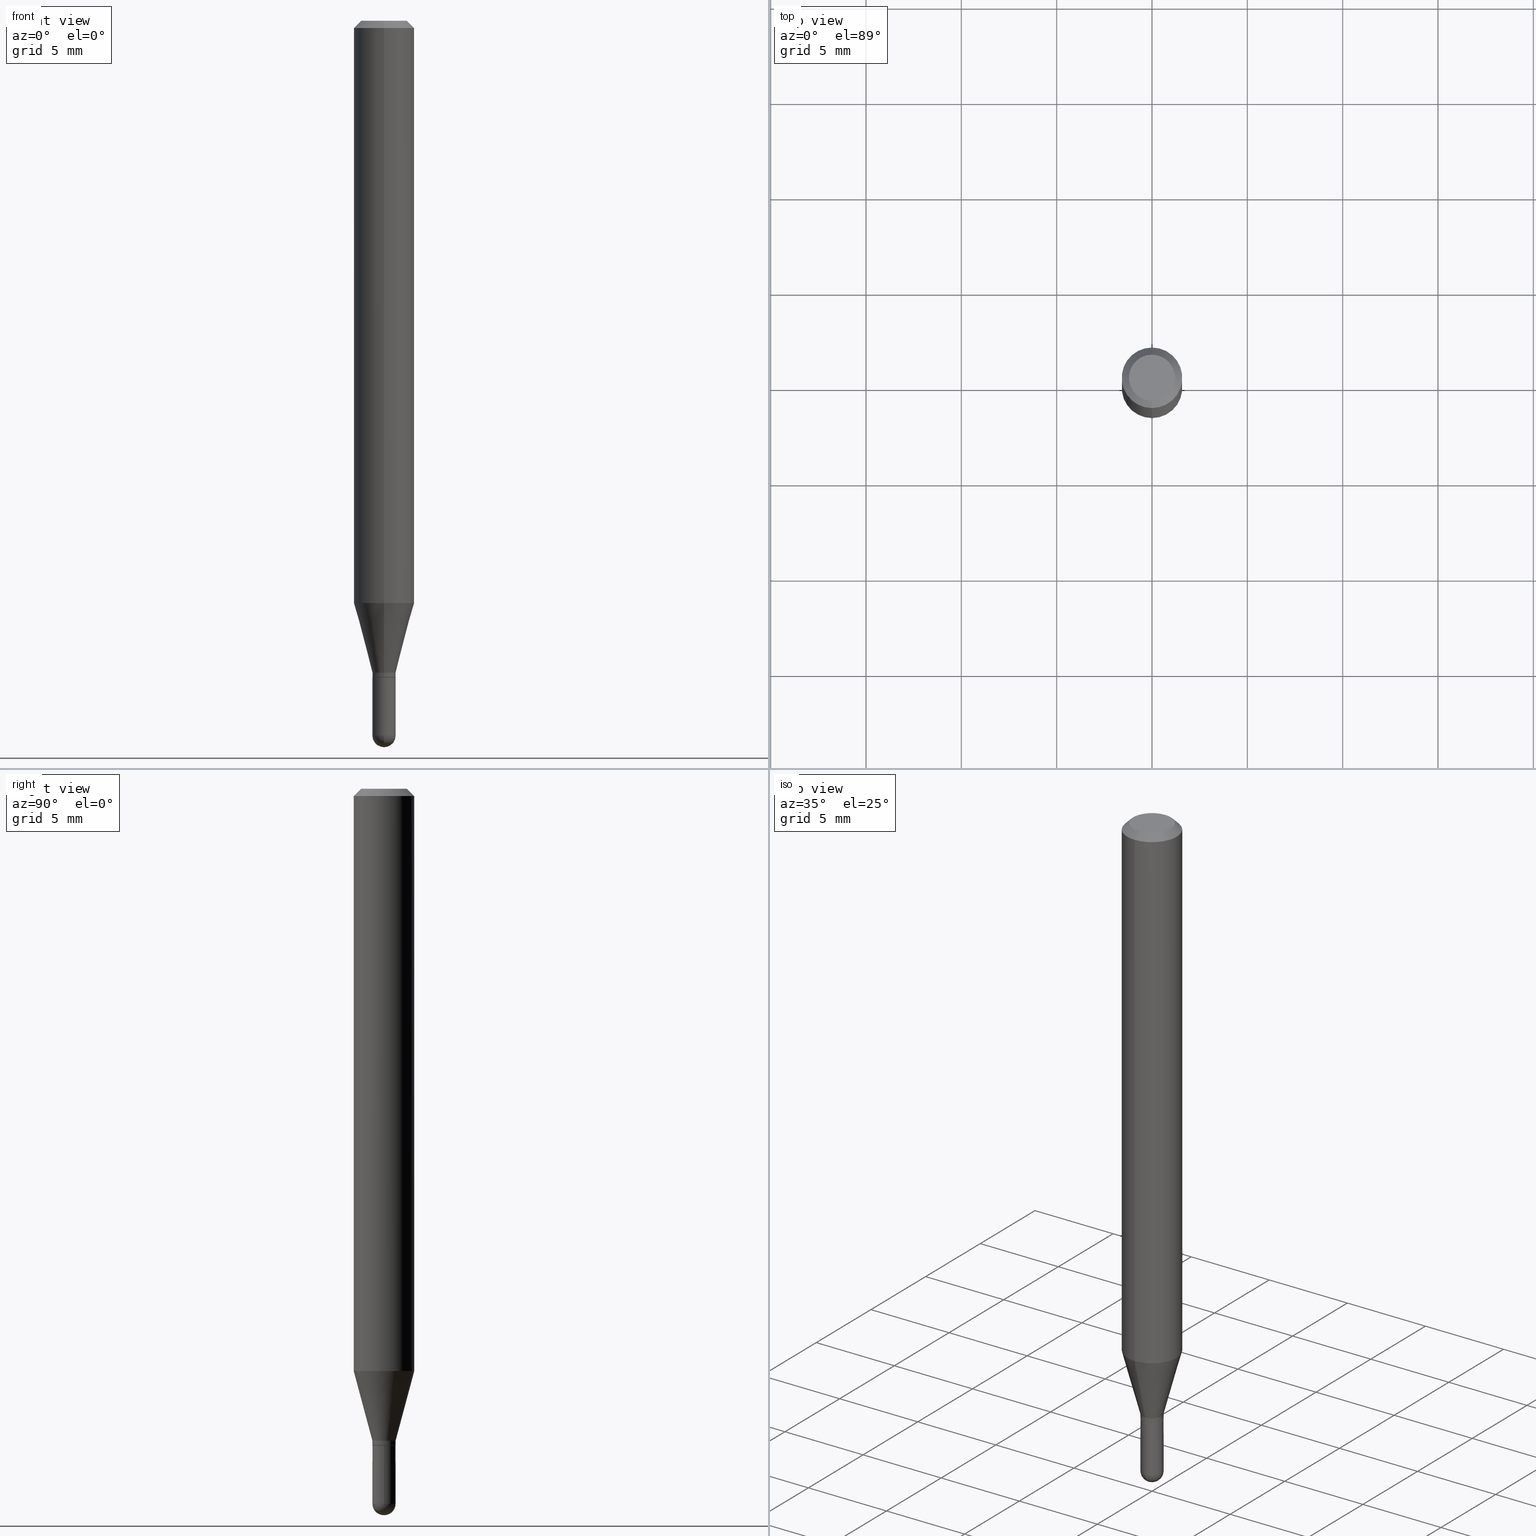
[diagram: canonical four-view strip — front | top / right | iso, engineering-drawing reading convention]
A machine part, canonical four-view strip (front | top / right | iso — engineering-drawing reading convention). The complete STEP part file that produces these views, byte-faithful:
ISO-10303-21;
HEADER;
FILE_DESCRIPTION (( 'STEP AP203' ),
    '1' );
FILE_NAME ('02613.STEP',
    '2024-03-07T20:46:47',
    ( '' ),
    ( '' ),
    'SwSTEP 2.0',
    'SolidWorks 2023',
    '' );
FILE_SCHEMA (( 'CONFIG_CONTROL_DESIGN' ));
ENDSEC;

DATA;
#1 = EDGE_LOOP ( 'NONE', ( #47, #358, #262, #488 ) ) ;
#2 = DIRECTION ( 'NONE',  ( -6.982962677686265922E-15, -1.000000000000000000, 4.370956789862821150E-15 ) ) ;
#3 = EDGE_CURVE ( 'NONE', #439, #468, #250, .T. ) ;
#4 = ORIENTED_EDGE ( 'NONE', *, *, #259, .T. ) ;
#5 = DIRECTION ( 'NONE',  ( 1.000000000000000000, 0.000000000000000000, 0.000000000000000000 ) ) ;
#6 = CC_DESIGN_PERSON_AND_ORGANIZATION_ASSIGNMENT ( #214, #495, ( #455 ) ) ;
#7 = CIRCLE ( 'NONE', #328, 0.04749999999999999362 ) ;
#8 = EDGE_LOOP ( 'NONE', ( #115, #220, #366, #32, #365 ) ) ;
#9 = LINE ( 'NONE', #160, #282 ) ;
#10 = AXIS2_PLACEMENT_3D ( 'NONE', #147, #219, #263 ) ;
#11 = EDGE_CURVE ( 'NONE', #435, #12, #496, .T. ) ;
#12 = VERTEX_POINT ( 'NONE', #247 ) ;
#13 = CC_DESIGN_PERSON_AND_ORGANIZATION_ASSIGNMENT ( #403, #196, ( #401 ) ) ;
#14 = ORIENTED_EDGE ( 'NONE', *, *, #52, .F. ) ;
#15 = DIRECTION ( 'NONE',  ( 0.000000000000000000, 0.000000000000000000, 1.000000000000000000 ) ) ;
#16 = ADVANCED_FACE ( 'NONE', ( #56 ), #97, .T. ) ;
#17 = FACE_OUTER_BOUND ( 'NONE', #316, .T. ) ;
#18 = FACE_OUTER_BOUND ( 'NONE', #272, .T. ) ;
#19 = DIRECTION ( 'NONE',  ( 1.000000000000000000, -6.982962677686266711E-15, 4.876176775795935232E-29 ) ) ;
#20 = VECTOR ( 'NONE', #356, 39.37007874015748143 ) ;
#21 = CARTESIAN_POINT ( 'NONE',  ( 3.316055701187045333E-29, -4.734448695471306216E-15, -1.356000000000000316 ) ) ;
#22 = APPROVAL_DATE_TIME ( #64, #473 ) ;
#23 = DIRECTION ( 'NONE',  ( 2.438088387897960049E-29, -3.491481338843145188E-15, -1.000000000000000000 ) ) ;
#24 = LINE ( 'NONE', #29, #421 ) ;
#25 = EDGE_CURVE ( 'NONE', #154, #159, #117, .T. ) ;
#26 = AXIS2_PLACEMENT_3D ( 'NONE', #255, #297, #423 ) ;
#27 = VECTOR ( 'NONE', #382, 39.37007874015748143 ) ;
#28 = LOCAL_TIME ( 15, 46, 47.00000000000000000, #369 ) ;
#29 = CARTESIAN_POINT ( 'NONE',  ( -1.640996229255941198E-16, -0.02350000000000473585, -1.356000000000000316 ) ) ;
#30 = CARTESIAN_POINT ( 'NONE',  ( -0.02400000000000000397, 1.705302565824240728E-16, -1.180544421661177751E-30 ) ) ;
#31 = CONICAL_SURFACE ( 'NONE', #26, 0.02350000000000000352, 0.7853981633974739252 ) ;
#32 = ORIENTED_EDGE ( 'NONE', *, *, #410, .F. ) ;
#33 = DIRECTION ( 'NONE',  ( -4.851104656540964275E-15, -0.7071067811865500152, -0.7071067811865450192 ) ) ;
#34 = UNCERTAINTY_MEASURE_WITH_UNIT (LENGTH_MEASURE( 1.000000000000000082E-05 ), #440, 'distance_accuracy_value', 'NONE');
#35 = CC_DESIGN_DATE_AND_TIME_ASSIGNMENT ( #492, #336, ( #93 ) ) ;
#36 = ADVANCED_BREP_SHAPE_REPRESENTATION ( '02613', ( #349, #346, #321 ), #387 ) ;
#37 = DIRECTION ( 'NONE',  ( -2.445468806185136877E-29, 3.491481338843145188E-15, 1.000000000000000000 ) ) ;
#38 = CIRCLE ( 'NONE', #319, 0.02399999999999992764 ) ;
#39 = VECTOR ( 'NONE', #121, 39.37007874015748143 ) ;
#40 = DIRECTION ( 'NONE',  ( -2.445461197207060331E-29, 3.491492235332826977E-15, 1.000000000000000000 ) ) ;
#41 = ORIENTED_EDGE ( 'NONE', *, *, #52, .T. ) ;
#42 = MECHANICAL_CONTEXT ( 'NONE', #308, 'mechanical' ) ;
#43 = ORIENTED_EDGE ( 'NONE', *, *, #3, .F. ) ;
#44 = DIRECTION ( 'NONE',  ( -2.445461197207060331E-29, 3.491492235332826977E-15, 1.000000000000000000 ) ) ;
#45 = AXIS2_PLACEMENT_3D ( 'NONE', #451, #340, #132 ) ;
#46 = ADVANCED_FACE ( 'NONE', ( #90 ), #31, .T. ) ;
#47 = ORIENTED_EDGE ( 'NONE', *, *, #274, .F. ) ;
#48 = APPLICATION_PROTOCOL_DEFINITION ( 'international standard', 'config_control_design', 1994, #308 ) ;
#49 = CIRCLE ( 'NONE', #497, 0.02400000000000000397 ) ;
#50 = ORIENTED_EDGE ( 'NONE', *, *, #151, .T. ) ;
#51 = CARTESIAN_POINT ( 'NONE',  ( 3.316907271900976096E-16, 0.04749999999999999362, -3.299190962427591539E-16 ) ) ;
#52 = EDGE_CURVE ( 'NONE', #468, #439, #38, .T. ) ;
#53 = ORIENTED_EDGE ( 'NONE', *, *, #461, .T. ) ;
#54 = DIRECTION ( 'NONE',  ( -2.445461197207060331E-29, 3.491492235332826977E-15, 1.000000000000000000 ) ) ;
#55 = DIRECTION ( 'NONE',  ( -2.445461197207060331E-29, 3.491492235332826977E-15, 1.000000000000000000 ) ) ;
#56 = FACE_OUTER_BOUND ( 'NONE', #309, .T. ) ;
#57 = ADVANCED_FACE ( 'NONE', ( #18 ), #258, .T. ) ;
#58 = DIRECTION ( 'NONE',  ( -2.445461197207060331E-29, 3.491492235332826977E-15, 1.000000000000000000 ) ) ;
#59 = APPROVAL_DATE_TIME ( #463, #290 ) ;
#60 = EDGE_CURVE ( 'NONE', #154, #280, #24, .T. ) ;
#61 = DIRECTION ( 'NONE',  ( -2.445461197207060331E-29, 3.491492235332826977E-15, 1.000000000000000000 ) ) ;
#62 = DIRECTION ( 'NONE',  ( 2.445461197207060331E-29, -3.491492235332826977E-15, -1.000000000000000000 ) ) ;
#63 = CARTESIAN_POINT ( 'NONE',  ( 3.316045383412774155E-29, -4.734463471111314297E-15, -1.356000000000000316 ) ) ;
#64 = DATE_AND_TIME ( #289, #464 ) ;
#65 = AXIS2_PLACEMENT_3D ( 'NONE', #288, #498, #251 ) ;
#66 = AXIS2_PLACEMENT_3D ( 'NONE', #125, #54, #192 ) ;
#67 = DIRECTION ( 'NONE',  ( -6.982962677686265133E-15, -1.000000000000000000, 0.000000000000000000 ) ) ;
#68 = ORIENTED_EDGE ( 'NONE', *, *, #295, .F. ) ;
#69 = LINE ( 'NONE', #428, #20 ) ;
#70 = SHAPE_DEFINITION_REPRESENTATION ( #441, #36 ) ;
#71 = VERTEX_POINT ( 'NONE', #174 ) ;
#72 = CARTESIAN_POINT ( 'NONE',  ( -4.364351673553623829E-16, -0.06250000000000421885, -1.202316043908598475 ) ) ;
#73 = CONICAL_SURFACE ( 'NONE', #422, 0.06250000000000000000, 0.7853981633974483900 ) ;
#74 = EDGE_CURVE ( 'NONE', #429, #435, #437, .T. ) ;
#75 = APPROVAL_PERSON_ORGANIZATION ( #101, #473, #131 ) ;
#76 = EDGE_LOOP ( 'NONE', ( #144, #191 ) ) ;
#77 = CARTESIAN_POINT ( 'NONE',  ( -0.02400000000000000050, -4.773407319219470337E-15, -1.356000000000000316 ) ) ;
#78 = CALENDAR_DATE ( 2024, 7, 3 ) ;
#79 = CARTESIAN_POINT ( 'NONE',  ( -4.287811248607203282E-16, -0.06250000000000005551, -0.01500000000000011047 ) ) ;
#80 = CARTESIAN_POINT ( 'NONE',  ( 0.000000000000000000, 0.000000000000000000, 0.000000000000000000 ) ) ;
#81 = EDGE_LOOP ( 'NONE', ( #355, #41, #480, #466 ) ) ;
#82 = DIRECTION ( 'NONE',  ( -6.982962677686265133E-15, -1.000000000000000000, 0.000000000000000000 ) ) ;
#83 = ORIENTED_EDGE ( 'NONE', *, *, #194, .T. ) ;
#84 = ORIENTED_EDGE ( 'NONE', *, *, #410, .T. ) ;
#85 = ORIENTED_EDGE ( 'NONE', *, *, #194, .F. ) ;
#86 = CARTESIAN_POINT ( 'NONE',  ( 0.000000000000000000, 0.000000000000000000, 0.000000000000000000 ) ) ;
#87 = CC_DESIGN_APPROVAL ( #510, ( #231 ) ) ;
#88 = ORIENTED_EDGE ( 'NONE', *, *, #165, .T. ) ;
#89 = APPLICATION_PROTOCOL_DEFINITION ( 'international standard', 'config_control_design', 1994, #232 ) ;
#90 = FACE_OUTER_BOUND ( 'NONE', #444, .T. ) ;
#91 = PERSON_AND_ORGANIZATION ( #312, #253 ) ;
#92 = DIRECTION ( 'NONE',  ( -6.982962677686265133E-15, -1.000000000000000000, 3.491492235332826977E-15 ) ) ;
#93 = PRODUCT_DEFINITION ( 'UNKNOWN', '', #455, #350 ) ;
#94 = APPROVAL_PERSON_ORGANIZATION ( #412, #290, #281 ) ;
#95 = DIRECTION ( 'NONE',  ( -2.445468806185136597E-29, 3.491481338843145583E-15, 1.000000000000000000 ) ) ;
#96 = EDGE_CURVE ( 'NONE', #270, #435, #384, .T. ) ;
#97 = SPHERICAL_SURFACE ( 'NONE', #320, 0.02400000000000017397 ) ;
#98 = COORDINATED_UNIVERSAL_TIME_OFFSET ( 5, 0, .BEHIND. ) ;
#99 = DIRECTION ( 'NONE',  ( 1.000000000000000000, -6.982962677686250144E-15, 0.000000000000000000 ) ) ;
#100 = DIRECTION ( 'NONE',  ( 1.000000000000000000, -6.982962677686265922E-15, 4.883557194083111780E-29 ) ) ;
#101 = PERSON_AND_ORGANIZATION ( #312, #253 ) ;
#102 = VECTOR ( 'NONE', #33, 39.37007874015748143 ) ;
#103 = ORIENTED_EDGE ( 'NONE', *, *, #200, .T. ) ;
#104 = VERTEX_POINT ( 'NONE', #330 ) ;
#105 = DIRECTION ( 'NONE',  ( 6.982962677686265922E-15, 1.000000000000000000, -3.483106191921935554E-15 ) ) ;
#106 = ORIENTED_EDGE ( 'NONE', *, *, #60, .T. ) ;
#107 = CARTESIAN_POINT ( 'NONE',  ( 0.02400000000000000397, -1.675911042644704316E-16, 1.170282426191024667E-30 ) ) ;
#108 = APPROVAL_DATE_TIME ( #261, #510 ) ;
#109 = AXIS2_PLACEMENT_3D ( 'NONE', #63, #414, #371 ) ;
#110 = CIRCLE ( 'NONE', #66, 0.06250000000000000000 ) ;
#111 = EDGE_CURVE ( 'NONE', #159, #154, #292, .T. ) ;
#112 = DIRECTION ( 'NONE',  ( -2.445468806185136877E-29, 3.491481338843145188E-15, 1.000000000000000000 ) ) ;
#113 = ORIENTED_EDGE ( 'NONE', *, *, #223, .T. ) ;
#114 = CYLINDRICAL_SURFACE ( 'NONE', #446, 0.06250000000000000000 ) ;
#115 = ORIENTED_EDGE ( 'NONE', *, *, #11, .T. ) ;
#116 = CARTESIAN_POINT ( 'NONE',  ( 1.705302565824560463E-16, 0.02399999999999511205, -1.355500000000000371 ) ) ;
#117 = CIRCLE ( 'NONE', #109, 0.02350000000000000352 ) ;
#118 = ORIENTED_EDGE ( 'NONE', *, *, #274, .T. ) ;
#119 = CYLINDRICAL_SURFACE ( 'NONE', #343, 0.02400000000000000397 ) ;
#120 = ORIENTED_EDGE ( 'NONE', *, *, #383, .T. ) ;
#121 = DIRECTION ( 'NONE',  ( -2.445461197207060331E-29, 3.491492235332826977E-15, 1.000000000000000000 ) ) ;
#122 = ORIENTED_EDGE ( 'NONE', *, *, #123, .T. ) ;
#123 = EDGE_CURVE ( 'NONE', #380, #485, #166, .T. ) ;
#124 = ORIENTED_EDGE ( 'NONE', *, *, #11, .F. ) ;
#125 = CARTESIAN_POINT ( 'NONE',  ( 2.940217232157978499E-29, -4.197877131722955059E-15, -1.202316043908598697 ) ) ;
#126 = VECTOR ( 'NONE', #254, 39.37007874015748143 ) ;
#127 = CARTESIAN_POINT ( 'NONE',  ( 3.607459558835231439E-29, -5.156365608450436393E-15, -1.475999999999999979 ) ) ;
#128 = CARTESIAN_POINT ( 'NONE',  ( 1.705302565824607055E-16, 0.02399999999999493164, -1.475999999999999979 ) ) ;
#129 = CARTESIAN_POINT ( 'NONE',  ( 3.607459558835231439E-29, -5.156365608450436393E-15, -1.475999999999999979 ) ) ;
#130 = PLANE ( 'NONE',  #156 ) ;
#131 = APPROVAL_ROLE ( '' ) ;
#132 = DIRECTION ( 'NONE',  ( -6.982962677686265922E-15, -1.000000000000000000, 0.000000000000000000 ) ) ;
#133 = CIRCLE ( 'NONE', #511, 0.02400000000000017397 ) ;
#134 = PERSON_AND_ORGANIZATION ( #312, #253 ) ;
#135 = DIRECTION ( 'NONE',  ( -2.445461197207060331E-29, 3.491492235332826977E-15, 1.000000000000000000 ) ) ;
#136 = PERSON_AND_ORGANIZATION ( #312, #253 ) ;
#137 = CARTESIAN_POINT ( 'NONE',  ( 3.291590771440703350E-29, -4.699548548757984927E-15, -1.346000000000000085 ) ) ;
#138 = ORIENTED_EDGE ( 'NONE', *, *, #229, .T. ) ;
#139 = AXIS2_PLACEMENT_3D ( 'NONE', #21, #500, #339 ) ;
#140 = AXIS2_PLACEMENT_3D ( 'NONE', #145, #381, #476 ) ;
#141 = ADVANCED_FACE ( 'NONE', ( #456 ), #130, .F. ) ;
#142 = ORIENTED_EDGE ( 'NONE', *, *, #123, .F. ) ;
#143 = LINE ( 'NONE', #79, #102 ) ;
#144 = ORIENTED_EDGE ( 'NONE', *, *, #25, .F. ) ;
#145 = CARTESIAN_POINT ( 'NONE',  ( 3.316045383412774155E-29, -4.734463471111314297E-15, -1.356000000000000316 ) ) ;
#146 = ADVANCED_FACE ( 'NONE', ( #491 ), #378, .F. ) ;
#147 = CARTESIAN_POINT ( 'NONE',  ( 3.291590771440703350E-29, -4.699548548757984927E-15, -1.346000000000000085 ) ) ;
#148 = APPROVAL_ROLE ( '' ) ;
#149 = VECTOR ( 'NONE', #112, 39.37007874015748143 ) ;
#150 = DIRECTION ( 'NONE',  ( 1.000000000000000000, -6.982962677686265922E-15, 4.883557194083111780E-29 ) ) ;
#151 = EDGE_CURVE ( 'NONE', #71, #405, #354, .T. ) ;
#152 = ORIENTED_EDGE ( 'NONE', *, *, #259, .F. ) ;
#153 = SPHERICAL_SURFACE ( 'NONE', #398, 0.02400000000000017397 ) ;
#154 = VERTEX_POINT ( 'NONE', #375 ) ;
#155 = DIRECTION ( 'NONE',  ( -2.445468806185136597E-29, 3.491481338843145583E-15, 1.000000000000000000 ) ) ;
#156 = AXIS2_PLACEMENT_3D ( 'NONE', #213, #23, #170 ) ;
#157 = AXIS2_PLACEMENT_3D ( 'NONE', #483, #44, #359 ) ;
#158 = LOCAL_TIME ( 15, 46, 47.00000000000000000, #420 ) ;
#159 = VERTEX_POINT ( 'NONE', #171 ) ;
#160 = CARTESIAN_POINT ( 'NONE',  ( -1.675911042644369543E-16, -0.02400000000000462527, -1.346000000000000085 ) ) ;
#161 = LINE ( 'NONE', #173, #126 ) ;
#162 = ORIENTED_EDGE ( 'NONE', *, *, #246, .T. ) ;
#163 = DIRECTION ( 'NONE',  ( -6.982962677686265922E-15, -1.000000000000000000, 3.491492235332826977E-15 ) ) ;
#164 = VERTEX_POINT ( 'NONE', #294 ) ;
#165 = EDGE_CURVE ( 'NONE', #408, #71, #335, .T. ) ;
#166 = CIRCLE ( 'NONE', #139, 0.02400000000000000050 ) ;
#167 = CARTESIAN_POINT ( 'NONE',  ( 3.607459558835231439E-29, -5.156365608450436393E-15, -1.475999999999999979 ) ) ;
#168 = CARTESIAN_POINT ( 'NONE',  ( 0.02400000000000000050, -4.902039799735776870E-15, -1.356000000000000316 ) ) ;
#169 = CIRCLE ( 'NONE', #206, 0.02399999999999992764 ) ;
#170 = DIRECTION ( 'NONE',  ( -1.000000000000000000, 6.982962677686265922E-15, -4.876176775795935793E-29 ) ) ;
#171 = CARTESIAN_POINT ( 'NONE',  ( 1.687538997430566571E-16, 0.02349999999999526773, -1.356000000000000316 ) ) ;
#172 = ADVANCED_FACE ( 'NONE', ( #300 ), #393, .T. ) ;
#173 = CARTESIAN_POINT ( 'NONE',  ( 1.669775429036566762E-16, 0.02349999999999526773, -1.356000000000000316 ) ) ;
#174 = CARTESIAN_POINT ( 'NONE',  ( 4.440892098500920998E-16, 0.06249999999999993755, -0.01500000000000054588 ) ) ;
#175 = AXIS2_PLACEMENT_3D ( 'NONE', #203, #95, #373 ) ;
#176 = CIRCLE ( 'NONE', #502, 0.02400000000000000050 ) ;
#177 = CARTESIAN_POINT ( 'NONE',  ( 8.024693618822424487E-45, -1.145720712847239897E-30, -3.281464301288998417E-16 ) ) ;
#178 = LINE ( 'NONE', #499, #27 ) ;
#179 = CARTESIAN_POINT ( 'NONE',  ( 3.668191795810671124E-31, -5.237238352999354998E-17, -0.01500000000000032904 ) ) ;
#180 = EDGE_CURVE ( 'NONE', #408, #242, #7, .T. ) ;
#181 = CARTESIAN_POINT ( 'NONE',  ( 3.840629472727447874E-16, 0.04749999999999999362, -4.939923113072091241E-16 ) ) ;
#182 = DIRECTION ( 'NONE',  ( -6.982962677686265922E-15, -1.000000000000000000, 0.000000000000000000 ) ) ;
#183 = APPROVAL_STATUS ( 'not_yet_approved' ) ;
#184 = ORIENTED_EDGE ( 'NONE', *, *, #165, .F. ) ;
#185 = CARTESIAN_POINT ( 'NONE',  ( 3.607459558835231439E-29, -5.156365608450436393E-15, -1.475999999999999979 ) ) ;
#186 = ADVANCED_FACE ( 'NONE', ( #17 ), #493, .T. ) ;
#187 = CARTESIAN_POINT ( 'NONE',  ( 2.940217232157978499E-29, -4.197877131722955059E-15, -1.202316043908598697 ) ) ;
#188 = AXIS2_PLACEMENT_3D ( 'NONE', #179, #58, #208 ) ;
#189 = AXIS2_PLACEMENT_3D ( 'NONE', #501, #299, #67 ) ;
#190 = DIRECTION ( 'NONE',  ( -2.445461197207060331E-29, 3.491492235332826977E-15, 1.000000000000000000 ) ) ;
#191 = ORIENTED_EDGE ( 'NONE', *, *, #111, .F. ) ;
#192 = DIRECTION ( 'NONE',  ( -6.982962677686265922E-15, -1.000000000000000000, 4.370956789862821150E-15 ) ) ;
#193 = CC_DESIGN_PERSON_AND_ORGANIZATION_ASSIGNMENT ( #134, #249, ( #231 ) ) ;
#194 = EDGE_CURVE ( 'NONE', #270, #104, #133, .T. ) ;
#195 = ORIENTED_EDGE ( 'NONE', *, *, #368, .F. ) ;
#196 = PERSON_AND_ORGANIZATION_ROLE ( 'design_owner' ) ;
#197 = CONICAL_SURFACE ( 'NONE', #157, 0.02399999999999992764, 0.2617993877991507401 ) ;
#198 = ORIENTED_EDGE ( 'NONE', *, *, #223, .F. ) ;
#199 = ADVANCED_FACE ( 'NONE', ( #448 ), #73, .T. ) ;
#200 = EDGE_CURVE ( 'NONE', #468, #164, #178, .T. ) ;
#201 = ORIENTED_EDGE ( 'NONE', *, *, #217, .T. ) ;
#202 =( LENGTH_UNIT ( ) NAMED_UNIT ( * ) SI_UNIT ( $, .METRE. ) );
#203 = CARTESIAN_POINT ( 'NONE',  ( 3.609511957929261635E-29, -5.153426456132482850E-15, -1.475999999999999979 ) ) ;
#204 = APPROVAL_STATUS ( 'not_yet_approved' ) ;
#205 = DIRECTION ( 'NONE',  ( -4.937700262164674260E-15, -0.7071067811865632269, 0.7071067811865319186 ) ) ;
#206 = AXIS2_PLACEMENT_3D ( 'NONE', #489, #445, #82 ) ;
#207 = APPROVAL_PERSON_ORGANIZATION ( #307, #510, #148 ) ;
#208 = DIRECTION ( 'NONE',  ( -6.982962677686265922E-15, -1.000000000000000000, 3.483106191921935554E-15 ) ) ;
#209 = DIRECTION ( 'NONE',  ( -6.982962677686265133E-15, -1.000000000000000000, 0.000000000000000000 ) ) ;
#210 = CALENDAR_DATE ( 2024, 7, 3 ) ;
#211 = CARTESIAN_POINT ( 'NONE',  ( 3.609511957929261635E-29, -5.153426456132482850E-15, -1.475999999999999979 ) ) ;
#212 = DIRECTION ( 'NONE',  ( 6.982962677686265922E-15, 1.000000000000000000, -3.483106191921935554E-15 ) ) ;
#213 = CARTESIAN_POINT ( 'NONE',  ( 1.675911042645035391E-16, 0.02399999999999526470, -1.356000000000000316 ) ) ;
#214 = PERSON_AND_ORGANIZATION ( #312, #253 ) ;
#215 = CLOSED_SHELL ( 'NONE', ( #269, #264, #291, #434, #352, #481, #172, #199, #447, #146, #46, #57 ) ) ;
#216 = CIRCLE ( 'NONE', #377, 0.06250000000000000000 ) ;
#217 = EDGE_CURVE ( 'NONE', #159, #314, #161, .T. ) ;
#218 = EDGE_LOOP ( 'NONE', ( #265, #284, #120, #184 ) ) ;
#219 = DIRECTION ( 'NONE',  ( -2.445461197207060331E-29, 3.491492235332826977E-15, 1.000000000000000000 ) ) ;
#220 = ORIENTED_EDGE ( 'NONE', *, *, #379, .T. ) ;
#221 = DIRECTION ( 'NONE',  ( -2.445461197207060331E-29, 3.491492235332826977E-15, 1.000000000000000000 ) ) ;
#222 = AXIS2_PLACEMENT_3D ( 'NONE', #351, #436, #105 ) ;
#223 = EDGE_CURVE ( 'NONE', #12, #104, #49, .T. ) ;
#224 = DIRECTION ( 'NONE',  ( -6.982962677686265922E-15, -1.000000000000000000, 3.483106191921935554E-15 ) ) ;
#225 = COORDINATED_UNIVERSAL_TIME_OFFSET ( 5, 0, .BEHIND. ) ;
#226 = CARTESIAN_POINT ( 'NONE',  ( 4.364351673553919652E-16, 0.06249999999999995143, -0.01500000000000054588 ) ) ;
#227 = CC_DESIGN_DATE_AND_TIME_ASSIGNMENT ( #431, #345, ( #231 ) ) ;
#228 = DIRECTION ( 'NONE',  ( 1.000000000000000000, -6.982962677686251722E-15, 0.000000000000000000 ) ) ;
#229 = EDGE_CURVE ( 'NONE', #242, #408, #487, .T. ) ;
#230 = DIRECTION ( 'NONE',  ( -2.445468806185136597E-29, 3.491481338843145583E-15, 1.000000000000000000 ) ) ;
#231 = SECURITY_CLASSIFICATION ( '', '', #279 ) ;
#232 = APPLICATION_CONTEXT ( 'configuration controlled 3d designs of mechanical parts and assemblies' ) ;
#233 = VECTOR ( 'NONE', #190, 39.37007874015748143 ) ;
#234 = ORIENTED_EDGE ( 'NONE', *, *, #180, .F. ) ;
#235 = FACE_OUTER_BOUND ( 'NONE', #347, .T. ) ;
#236 = EDGE_CURVE ( 'NONE', #314, #280, #471, .T. ) ;
#237 = ORIENTED_EDGE ( 'NONE', *, *, #453, .F. ) ;
#238 = EDGE_LOOP ( 'NONE', ( #506, #201, #508, #322 ) ) ;
#239 =( NAMED_UNIT ( * ) PLANE_ANGLE_UNIT ( ) SI_UNIT ( $, .RADIAN. ) );
#240 = AXIS2_PLACEMENT_3D ( 'NONE', #167, #419, #494 ) ;
#241 = CONICAL_SURFACE ( 'NONE', #140, 0.02350000000000000352, 0.7853981633974739252 ) ;
#242 = VERTEX_POINT ( 'NONE', #425 ) ;
#243 = PLANE ( 'NONE',  #260 ) ;
#244 = ORIENTED_EDGE ( 'NONE', *, *, #96, .F. ) ;
#245 = LENGTH_MEASURE_WITH_UNIT ( LENGTH_MEASURE( 0.02539999999999999897 ), #202 );
#246 = EDGE_CURVE ( 'NONE', #280, #439, #69, .T. ) ;
#247 = CARTESIAN_POINT ( 'NONE',  ( -0.02400000000000000397, -4.773407319219470337E-15, -1.475999999999999979 ) ) ;
#248 = PERSON_AND_ORGANIZATION_ROLE ( 'design_supplier' ) ;
#249 = PERSON_AND_ORGANIZATION_ROLE ( 'classification_officer' ) ;
#250 = CIRCLE ( 'NONE', #406, 0.02399999999999992764 ) ;
#251 = DIRECTION ( 'NONE',  ( -6.982962677686265922E-15, -1.000000000000000000, 3.491492235332826977E-15 ) ) ;
#252 = PERSON_AND_ORGANIZATION_ROLE ( 'creator' ) ;
#253 = ORGANIZATION ( 'UNSPECIFIED', 'UNSPECIFIED', '' ) ;
#254 = DIRECTION ( 'NONE',  ( 5.024295867788190974E-15, 0.7071067811865681119, 0.7071067811865270336 ) ) ;
#255 = CARTESIAN_POINT ( 'NONE',  ( 3.316045383412774155E-29, -4.734463471111314297E-15, -1.356000000000000316 ) ) ;
#256 = DIRECTION ( 'NONE',  ( -2.445461197207060331E-29, 3.491492235332826977E-15, 1.000000000000000000 ) ) ;
#257 = DIRECTION ( 'NONE',  ( -2.445461197207060331E-29, 3.491492235332826977E-15, 1.000000000000000000 ) ) ;
#258 = CYLINDRICAL_SURFACE ( 'NONE', #362, 0.02399999999999992764 ) ;
#259 = EDGE_CURVE ( 'NONE', #104, #429, #416, .T. ) ;
#260 = AXIS2_PLACEMENT_3D ( 'NONE', #51, #443, #287 ) ;
#261 = DATE_AND_TIME ( #78, #364 ) ;
#262 = ORIENTED_EDGE ( 'NONE', *, *, #453, .T. ) ;
#263 = DIRECTION ( 'NONE',  ( -6.982962677686265133E-15, -1.000000000000000000, 0.000000000000000000 ) ) ;
#264 = ADVANCED_FACE ( 'NONE', ( #430 ), #241, .T. ) ;
#265 = ORIENTED_EDGE ( 'NONE', *, *, #229, .F. ) ;
#266 = DIRECTION ( 'NONE',  ( -6.982962677686265133E-15, -1.000000000000000000, 3.491492235332826977E-15 ) ) ;
#267 = AXIS2_PLACEMENT_3D ( 'NONE', #459, #452, #462 ) ;
#268 = CARTESIAN_POINT ( 'NONE',  ( 0.02400000000000000397, -5.111528680066364398E-15, -1.475999999999999979 ) ) ;
#269 = ADVANCED_FACE ( 'NONE', ( #469 ), #315, .T. ) ;
#270 = VERTEX_POINT ( 'NONE', #310 ) ;
#271 = DIRECTION ( 'NONE',  ( -2.445468806185136597E-29, 3.491481338843145583E-15, 1.000000000000000000 ) ) ;
#272 = EDGE_LOOP ( 'NONE', ( #68, #418, #162, #14 ) ) ;
#273 = DIRECTION ( 'NONE',  ( -2.445461197207060331E-29, 3.491492235332826977E-15, 1.000000000000000000 ) ) ;
#274 = EDGE_CURVE ( 'NONE', #164, #71, #353, .T. ) ;
#275 = EDGE_LOOP ( 'NONE', ( #244, #83, #198, #124 ) ) ;
#276 = LINE ( 'NONE', #331, #39 ) ;
#277 = ORIENTED_EDGE ( 'NONE', *, *, #111, .T. ) ;
#278 = FACE_OUTER_BOUND ( 'NONE', #8, .T. ) ;
#279 = SECURITY_CLASSIFICATION_LEVEL ( 'unclassified' ) ;
#280 = VERTEX_POINT ( 'NONE', #305 ) ;
#281 = APPROVAL_ROLE ( '' ) ;
#282 = VECTOR ( 'NONE', #285, 39.37007874015748854 ) ;
#283 = EDGE_CURVE ( 'NONE', #242, #405, #143, .T. ) ;
#284 = ORIENTED_EDGE ( 'NONE', *, *, #283, .T. ) ;
#285 = DIRECTION ( 'NONE',  ( -1.807323732225332900E-15, -0.2588190451025185745, 0.9659258262890687563 ) ) ;
#286 = DIRECTION ( 'NONE',  ( -6.982962677686265133E-15, -1.000000000000000000, 0.000000000000000000 ) ) ;
#287 = DIRECTION ( 'NONE',  ( 6.982962677686265922E-15, 1.000000000000000000, -3.491492235332826977E-15 ) ) ;
#288 = CARTESIAN_POINT ( 'NONE',  ( 3.316045383412774155E-29, -4.734463471111314297E-15, -1.356000000000000316 ) ) ;
#289 = CALENDAR_DATE ( 2024, 7, 3 ) ;
#290 = APPROVAL ( #204, 'UNSPECIFIED' ) ;
#291 = ADVANCED_FACE ( 'NONE', ( #348 ), #372, .T. ) ;
#292 = CIRCLE ( 'NONE', #45, 0.02350000000000000352 ) ;
#293 = VECTOR ( 'NONE', #37, 39.37007874015748143 ) ;
#294 = CARTESIAN_POINT ( 'NONE',  ( 4.440892098500918040E-16, 0.06249999999999577421, -1.202316043908599141 ) ) ;
#295 = EDGE_CURVE ( 'NONE', #314, #468, #478, .T. ) ;
#296 = DIRECTION ( 'NONE',  ( -6.982962677686265922E-15, -1.000000000000000000, 0.000000000000000000 ) ) ;
#297 = DIRECTION ( 'NONE',  ( -2.445461197207060331E-29, 3.491492235332826977E-15, 1.000000000000000000 ) ) ;
#298 = DIRECTION ( 'NONE',  ( -6.982962677686265922E-15, -1.000000000000000000, 0.000000000000000000 ) ) ;
#299 = DIRECTION ( 'NONE',  ( -2.445461197207060331E-29, 3.491492235332826977E-15, 1.000000000000000000 ) ) ;
#300 = FACE_OUTER_BOUND ( 'NONE', #1, .T. ) ;
#301 = AXIS2_PLACEMENT_3D ( 'NONE', #325, #484, #334 ) ;
#302 = VERTEX_POINT ( 'NONE', #72 ) ;
#303 = CC_DESIGN_SECURITY_CLASSIFICATION ( #231, ( #455 ) ) ;
#304 = ORIENTED_EDGE ( 'NONE', *, *, #217, .F. ) ;
#305 = CARTESIAN_POINT ( 'NONE',  ( -1.675911042644373241E-16, -0.02400000000000474323, -1.355500000000000371 ) ) ;
#306 = LINE ( 'NONE', #107, #149 ) ;
#307 = PERSON_AND_ORGANIZATION ( #312, #253 ) ;
#308 = APPLICATION_CONTEXT ( 'configuration controlled 3d designs of mechanical parts and assemblies' ) ;
#309 = EDGE_LOOP ( 'NONE', ( #85, #386, #450, #152 ) ) ;
#310 = CARTESIAN_POINT ( 'NONE',  ( 3.665124610636659881E-29, -5.241630736741649279E-15, -1.500000000000000222 ) ) ;
#311 = AXIS2_PLACEMENT_3D ( 'NONE', #467, #432, #266 ) ;
#312 = PERSON ( 'UNSPECIFIED', 'UNSPECIFIED', 'UNSPECIFIED', ('UNSPECIFIED'), ('UNSPECIFIED'), ('UNSPECIFIED') ) ;
#313 = CC_DESIGN_APPROVAL ( #473, ( #455 ) ) ;
#314 = VERTEX_POINT ( 'NONE', #116 ) ;
#315 = CYLINDRICAL_SURFACE ( 'NONE', #311, 0.02399999999999992764 ) ;
#316 = EDGE_LOOP ( 'NONE', ( #424, #113, #4, #84, #142 ) ) ;
#317 = CARTESIAN_POINT ( 'NONE',  ( -4.364351673553912750E-16, -0.06250000000000005551, -0.01500000000000011047 ) ) ;
#318 = EDGE_LOOP ( 'NONE', ( #323, #103, #195, #326 ) ) ;
#319 = AXIS2_PLACEMENT_3D ( 'NONE', #376, #135, #286 ) ;
#320 = AXIS2_PLACEMENT_3D ( 'NONE', #127, #100, #298 ) ;
#321 = AXIS2_PLACEMENT_3D ( 'NONE', #86, #15, #5 ) ;
#322 = ORIENTED_EDGE ( 'NONE', *, *, #60, .F. ) ;
#323 = ORIENTED_EDGE ( 'NONE', *, *, #3, .T. ) ;
#324 = CARTESIAN_POINT ( 'NONE',  ( 0.000000000000000000, 0.000000000000000000, 0.000000000000000000 ) ) ;
#325 = CARTESIAN_POINT ( 'NONE',  ( 0.000000000000000000, 0.000000000000000000, 0.000000000000000000 ) ) ;
#326 = ORIENTED_EDGE ( 'NONE', *, *, #449, .F. ) ;
#327 = FACE_OUTER_BOUND ( 'NONE', #81, .T. ) ;
#328 = AXIS2_PLACEMENT_3D ( 'NONE', #417, #55, #332 ) ;
#329 = AXIS2_PLACEMENT_3D ( 'NONE', #388, #40, #224 ) ;
#330 = CARTESIAN_POINT ( 'NONE',  ( -1.675911042644349329E-16, -0.02400000000000524630, -1.475999999999999979 ) ) ;
#331 = CARTESIAN_POINT ( 'NONE',  ( -4.364351673553916201E-16, -0.06250000000000000000, 2.182182647083016860E-16 ) ) ;
#332 = DIRECTION ( 'NONE',  ( -6.982962677686266711E-15, -1.000000000000000000, 3.491492235332826977E-15 ) ) ;
#333 = CARTESIAN_POINT ( 'NONE',  ( 0.000000000000000000, 0.000000000000000000, 0.000000000000000000 ) ) ;
#334 = DIRECTION ( 'NONE',  ( -6.982962677686265922E-15, -1.000000000000000000, 3.491492235332826977E-15 ) ) ;
#335 = LINE ( 'NONE', #226, #486 ) ;
#336 = DATE_TIME_ROLE ( 'creation_date' ) ;
#337 = DIRECTION ( 'NONE',  ( -2.445468806185136597E-29, 3.491481338843145583E-15, 1.000000000000000000 ) ) ;
#338 = AXIS2_PLACEMENT_3D ( 'NONE', #177, #256, #341 ) ;
#339 = DIRECTION ( 'NONE',  ( 1.000000000000000000, -6.982962677686251722E-15, 0.000000000000000000 ) ) ;
#340 = DIRECTION ( 'NONE',  ( -2.445461197207060331E-29, 3.491492235332826977E-15, 1.000000000000000000 ) ) ;
#341 = DIRECTION ( 'NONE',  ( -6.982962677686266711E-15, -1.000000000000000000, 3.491492235332826977E-15 ) ) ;
#342 = EDGE_LOOP ( 'NONE', ( #482, #118, #391, #237 ) ) ;
#343 = AXIS2_PLACEMENT_3D ( 'NONE', #324, #155, #19 ) ;
#344 = CARTESIAN_POINT ( 'NONE',  ( 3.609511957929261635E-29, -5.153426456132482850E-15, -1.475999999999999979 ) ) ;
#345 = DATE_TIME_ROLE ( 'classification_date' ) ;
#346 = MANIFOLD_SOLID_BREP ( 'Body-Move/Copy2[2]', #215 ) ;
#347 = EDGE_LOOP ( 'NONE', ( #477, #138 ) ) ;
#348 = FACE_OUTER_BOUND ( 'NONE', #218, .T. ) ;
#349 = MANIFOLD_SOLID_BREP ( 'Body-Move/Copy2[1]', #396 ) ;
#350 = DESIGN_CONTEXT ( 'detailed design', #232, 'design' ) ;
#351 = CARTESIAN_POINT ( 'NONE',  ( 3.668191795810671124E-31, -5.237238352999354998E-17, -0.01500000000000032904 ) ) ;
#352 = ADVANCED_FACE ( 'NONE', ( #507 ), #438, .T. ) ;
#353 = LINE ( 'NONE', #509, #233 ) ;
#354 = CIRCLE ( 'NONE', #188, 0.06250000000000000000 ) ;
#355 = ORIENTED_EDGE ( 'NONE', *, *, #200, .F. ) ;
#356 = DIRECTION ( 'NONE',  ( -2.445461197207060331E-29, 3.491492235332826977E-15, 1.000000000000000000 ) ) ;
#357 = CC_DESIGN_PERSON_AND_ORGANIZATION_ASSIGNMENT ( #136, #252, ( #93 ) ) ;
#358 = ORIENTED_EDGE ( 'NONE', *, *, #474, .T. ) ;
#359 = DIRECTION ( 'NONE',  ( -6.982962677686265133E-15, -1.000000000000000000, 0.000000000000000000 ) ) ;
#360 = ORIENTED_EDGE ( 'NONE', *, *, #283, .F. ) ;
#361 = CARTESIAN_POINT ( 'NONE',  ( -1.675911042644369543E-16, -0.02400000000000462527, -1.346000000000000085 ) ) ;
#362 = AXIS2_PLACEMENT_3D ( 'NONE', #333, #257, #92 ) ;
#363 = AXIS2_PLACEMENT_3D ( 'NONE', #413, #337, #490 ) ;
#364 = LOCAL_TIME ( 15, 46, 47.00000000000000000, #225 ) ;
#365 = ORIENTED_EDGE ( 'NONE', *, *, #74, .T. ) ;
#366 = ORIENTED_EDGE ( 'NONE', *, *, #426, .F. ) ;
#367 = DIMENSIONAL_EXPONENTS ( 1.000000000000000000, 0.000000000000000000, 0.000000000000000000, 0.000000000000000000, 0.000000000000000000, 0.000000000000000000, 0.000000000000000000 ) ;
#368 = EDGE_CURVE ( 'NONE', #302, #164, #216, .T. ) ;
#369 = COORDINATED_UNIVERSAL_TIME_OFFSET ( 5, 0, .BEHIND. ) ;
#370 = DIRECTION ( 'NONE',  ( -1.000000000000000000, 6.982962677686265922E-15, -4.883557194083112340E-29 ) ) ;
#371 = DIRECTION ( 'NONE',  ( -6.982962677686265922E-15, -1.000000000000000000, 0.000000000000000000 ) ) ;
#372 = CONICAL_SURFACE ( 'NONE', #222, 0.06250000000000000000, 0.7853981633974483900 ) ;
#373 = DIRECTION ( 'NONE',  ( 1.000000000000000000, -6.982962677686250144E-15, 0.000000000000000000 ) ) ;
#374 = COORDINATED_UNIVERSAL_TIME_OFFSET ( 5, 0, .BEHIND. ) ;
#375 = CARTESIAN_POINT ( 'NONE',  ( -1.640996229255941198E-16, -0.02350000000000473585, -1.356000000000000316 ) ) ;
#376 = CARTESIAN_POINT ( 'NONE',  ( 3.291590771440703350E-29, -4.699548548757984927E-15, -1.346000000000000085 ) ) ;
#377 = AXIS2_PLACEMENT_3D ( 'NONE', #187, #221, #2 ) ;
#378 = PLANE ( 'NONE',  #65 ) ;
#379 = EDGE_CURVE ( 'NONE', #12, #380, #505, .T. ) ;
#380 = VERTEX_POINT ( 'NONE', #77 ) ;
#381 = DIRECTION ( 'NONE',  ( -2.445461197207060331E-29, 3.491492235332826977E-15, 1.000000000000000000 ) ) ;
#382 = DIRECTION ( 'NONE',  ( 1.839019923739603471E-15, 0.2588190451025254024, 0.9659258262890670910 ) ) ;
#383 = EDGE_CURVE ( 'NONE', #405, #71, #465, .T. ) ;
#384 = CIRCLE ( 'NONE', #240, 0.02400000000000017397 ) ;
#385 = CC_DESIGN_APPROVAL ( #290, ( #93 ) ) ;
#386 = ORIENTED_EDGE ( 'NONE', *, *, #96, .T. ) ;
#387 =( GEOMETRIC_REPRESENTATION_CONTEXT ( 3 ) GLOBAL_UNCERTAINTY_ASSIGNED_CONTEXT ( ( #34 ) ) GLOBAL_UNIT_ASSIGNED_CONTEXT ( ( #440, #239, #400 ) ) REPRESENTATION_CONTEXT ( 'NONE', 'WORKASPACE' ) );
#388 = CARTESIAN_POINT ( 'NONE',  ( 3.668191795810671124E-31, -5.237238352999354998E-17, -0.01500000000000032904 ) ) ;
#389 = CALENDAR_DATE ( 2024, 7, 3 ) ;
#390 = ADVANCED_FACE ( 'NONE', ( #472 ), #153, .T. ) ;
#391 = ORIENTED_EDGE ( 'NONE', *, *, #383, .F. ) ;
#392 = DIRECTION ( 'NONE',  ( 1.000000000000000000, -6.982962677686250144E-15, 0.000000000000000000 ) ) ;
#393 = CYLINDRICAL_SURFACE ( 'NONE', #301, 0.06250000000000000000 ) ;
#394 = FACE_OUTER_BOUND ( 'NONE', #342, .T. ) ;
#395 = DIRECTION ( 'NONE',  ( -2.445461197207060331E-29, 3.491492235332826977E-15, 1.000000000000000000 ) ) ;
#396 = CLOSED_SHELL ( 'NONE', ( #470, #16, #141, #390, #186 ) ) ;
#397 = CC_DESIGN_PERSON_AND_ORGANIZATION_ASSIGNMENT ( #91, #248, ( #455 ) ) ;
#398 = AXIS2_PLACEMENT_3D ( 'NONE', #185, #150, #182 ) ;
#399 = ORIENTED_EDGE ( 'NONE', *, *, #236, .F. ) ;
#400 =( NAMED_UNIT ( * ) SI_UNIT ( $, .STERADIAN. ) SOLID_ANGLE_UNIT ( ) );
#401 = PRODUCT ( '02613', '02613', '', ( #42 ) ) ;
#402 = EDGE_LOOP ( 'NONE', ( #360, #234, #88, #50 ) ) ;
#403 = PERSON_AND_ORGANIZATION ( #312, #253 ) ;
#404 = PRODUCT_RELATED_PRODUCT_CATEGORY ( 'detail', '', ( #401 ) ) ;
#405 = VERTEX_POINT ( 'NONE', #317 ) ;
#406 = AXIS2_PLACEMENT_3D ( 'NONE', #137, #61, #209 ) ;
#407 = VECTOR ( 'NONE', #395, 39.37007874015748143 ) ;
#408 = VERTEX_POINT ( 'NONE', #181 ) ;
#409 = CARTESIAN_POINT ( 'NONE',  ( 3.073097332162742703E-16, 0.02399999999999522307, -1.346000000000000085 ) ) ;
#410 = EDGE_CURVE ( 'NONE', #429, #485, #306, .T. ) ;
#411 = ORIENTED_EDGE ( 'NONE', *, *, #426, .T. ) ;
#412 = PERSON_AND_ORGANIZATION ( #312, #253 ) ;
#413 = CARTESIAN_POINT ( 'NONE',  ( 0.000000000000000000, 0.000000000000000000, 0.000000000000000000 ) ) ;
#414 = DIRECTION ( 'NONE',  ( -2.445461197207060331E-29, 3.491492235332826977E-15, 1.000000000000000000 ) ) ;
#415 = APPROVAL_STATUS ( 'not_yet_approved' ) ;
#416 = CIRCLE ( 'NONE', #454, 0.02400000000000000397 ) ;
#417 = CARTESIAN_POINT ( 'NONE',  ( 8.024693618822424487E-45, -1.145720712847239897E-30, -3.281464301288998417E-16 ) ) ;
#418 = ORIENTED_EDGE ( 'NONE', *, *, #236, .T. ) ;
#419 = DIRECTION ( 'NONE',  ( 1.000000000000000000, -7.105427357601001070E-15, 4.926315508542082329E-29 ) ) ;
#420 = COORDINATED_UNIVERSAL_TIME_OFFSET ( 5, 0, .BEHIND. ) ;
#421 = VECTOR ( 'NONE', #205, 39.37007874015748143 ) ;
#422 = AXIS2_PLACEMENT_3D ( 'NONE', #458, #62, #212 ) ;
#423 = DIRECTION ( 'NONE',  ( -6.982962677686265922E-15, -1.000000000000000000, 0.000000000000000000 ) ) ;
#424 = ORIENTED_EDGE ( 'NONE', *, *, #379, .F. ) ;
#425 = CARTESIAN_POINT ( 'NONE',  ( -3.773273898774340269E-16, -0.04749999999999999362, -1.623005489505905840E-16 ) ) ;
#426 = EDGE_CURVE ( 'NONE', #485, #380, #176, .T. ) ;
#427 = DIRECTION ( 'NONE',  ( 4.937700262164548042E-15, 0.7071067811865451302, -0.7071067811865499042 ) ) ;
#428 = CARTESIAN_POINT ( 'NONE',  ( -1.675911042644698646E-16, -0.02399999999999992764, 8.379581364798759195E-17 ) ) ;
#429 = VERTEX_POINT ( 'NONE', #268 ) ;
#430 = FACE_OUTER_BOUND ( 'NONE', #238, .T. ) ;
#431 = DATE_AND_TIME ( #389, #28 ) ;
#432 = DIRECTION ( 'NONE',  ( -2.445461197207060331E-29, 3.491492235332826977E-15, 1.000000000000000000 ) ) ;
#433 = CARTESIAN_POINT ( 'NONE',  ( 1.705302565824234812E-16, 0.02399999999999992764, -8.379581364798759195E-17 ) ) ;
#434 = ADVANCED_FACE ( 'NONE', ( #394 ), #114, .T. ) ;
#435 = VERTEX_POINT ( 'NONE', #128 ) ;
#436 = DIRECTION ( 'NONE',  ( 2.445461197207060331E-29, -3.491492235332826977E-15, -1.000000000000000000 ) ) ;
#437 = CIRCLE ( 'NONE', #175, 0.02400000000000000397 ) ;
#438 = CONICAL_SURFACE ( 'NONE', #10, 0.02399999999999992764, 0.2617993877991507401 ) ;
#439 = VERTEX_POINT ( 'NONE', #361 ) ;
#440 =( CONVERSION_BASED_UNIT ( 'INCH', #245 ) LENGTH_UNIT ( ) NAMED_UNIT ( #367 ) );
#441 = PRODUCT_DEFINITION_SHAPE ( 'NONE', 'NONE',  #93 ) ;
#442 = EDGE_LOOP ( 'NONE', ( #53, #475, #43, #504 ) ) ;
#443 = DIRECTION ( 'NONE',  ( 2.445461197207060051E-29, -3.491492235332826977E-15, -1.000000000000000000 ) ) ;
#444 = EDGE_LOOP ( 'NONE', ( #304, #277, #106, #399 ) ) ;
#445 = DIRECTION ( 'NONE',  ( -2.445461197207060331E-29, 3.491492235332826977E-15, 1.000000000000000000 ) ) ;
#446 = AXIS2_PLACEMENT_3D ( 'NONE', #80, #273, #163 ) ;
#447 = ADVANCED_FACE ( 'NONE', ( #235 ), #243, .F. ) ;
#448 = FACE_OUTER_BOUND ( 'NONE', #402, .T. ) ;
#449 = EDGE_CURVE ( 'NONE', #439, #302, #9, .T. ) ;
#450 = ORIENTED_EDGE ( 'NONE', *, *, #74, .F. ) ;
#451 = CARTESIAN_POINT ( 'NONE',  ( 3.316045383412774155E-29, -4.734463471111314297E-15, -1.356000000000000316 ) ) ;
#452 = DIRECTION ( 'NONE',  ( -2.445468806185136597E-29, 3.491481338843145583E-15, 1.000000000000000000 ) ) ;
#453 = EDGE_CURVE ( 'NONE', #302, #405, #276, .T. ) ;
#454 = AXIS2_PLACEMENT_3D ( 'NONE', #344, #230, #392 ) ;
#455 = PRODUCT_DEFINITION_FORMATION_WITH_SPECIFIED_SOURCE ( 'ANY', '', #401, .NOT_KNOWN. ) ;
#456 = FACE_OUTER_BOUND ( 'NONE', #479, .T. ) ;
#457 = CALENDAR_DATE ( 2024, 7, 3 ) ;
#458 = CARTESIAN_POINT ( 'NONE',  ( 3.668191795810671124E-31, -5.237238352999354998E-17, -0.01500000000000032904 ) ) ;
#459 = CARTESIAN_POINT ( 'NONE',  ( 3.609511957929261635E-29, -5.153426456132482850E-15, -1.475999999999999979 ) ) ;
#460 = DIRECTION ( 'NONE',  ( -2.445468806185136597E-29, 3.491481338843145583E-15, 1.000000000000000000 ) ) ;
#461 = EDGE_CURVE ( 'NONE', #280, #314, #169, .T. ) ;
#462 = DIRECTION ( 'NONE',  ( 1.000000000000000000, -6.982962677686250144E-15, 0.000000000000000000 ) ) ;
#463 = DATE_AND_TIME ( #210, #158 ) ;
#464 = LOCAL_TIME ( 15, 46, 47.00000000000000000, #374 ) ;
#465 = CIRCLE ( 'NONE', #329, 0.06250000000000000000 ) ;
#466 = ORIENTED_EDGE ( 'NONE', *, *, #474, .F. ) ;
#467 = CARTESIAN_POINT ( 'NONE',  ( 0.000000000000000000, 0.000000000000000000, 0.000000000000000000 ) ) ;
#468 = VERTEX_POINT ( 'NONE', #409 ) ;
#469 = FACE_OUTER_BOUND ( 'NONE', #442, .T. ) ;
#470 = ADVANCED_FACE ( 'NONE', ( #278 ), #119, .T. ) ;
#471 = CIRCLE ( 'NONE', #189, 0.02399999999999992764 ) ;
#472 = FACE_OUTER_BOUND ( 'NONE', #275, .T. ) ;
#473 = APPROVAL ( #415, 'UNSPECIFIED' ) ;
#474 = EDGE_CURVE ( 'NONE', #164, #302, #110, .T. ) ;
#475 = ORIENTED_EDGE ( 'NONE', *, *, #295, .T. ) ;
#476 = DIRECTION ( 'NONE',  ( -6.982962677686265922E-15, -1.000000000000000000, 0.000000000000000000 ) ) ;
#477 = ORIENTED_EDGE ( 'NONE', *, *, #180, .T. ) ;
#478 = LINE ( 'NONE', #433, #407 ) ;
#479 = EDGE_LOOP ( 'NONE', ( #411, #122 ) ) ;
#480 = ORIENTED_EDGE ( 'NONE', *, *, #449, .T. ) ;
#481 = ADVANCED_FACE ( 'NONE', ( #327 ), #197, .T. ) ;
#482 = ORIENTED_EDGE ( 'NONE', *, *, #368, .T. ) ;
#483 = CARTESIAN_POINT ( 'NONE',  ( 3.291590771440703350E-29, -4.699548548757984927E-15, -1.346000000000000085 ) ) ;
#484 = DIRECTION ( 'NONE',  ( -2.445461197207060331E-29, 3.491492235332826977E-15, 1.000000000000000000 ) ) ;
#485 = VERTEX_POINT ( 'NONE', #168 ) ;
#486 = VECTOR ( 'NONE', #427, 39.37007874015748143 ) ;
#487 = CIRCLE ( 'NONE', #338, 0.04749999999999999362 ) ;
#488 = ORIENTED_EDGE ( 'NONE', *, *, #151, .F. ) ;
#489 = CARTESIAN_POINT ( 'NONE',  ( 3.314822652814170811E-29, -4.732717724993647829E-15, -1.355500000000000371 ) ) ;
#490 = DIRECTION ( 'NONE',  ( 1.000000000000000000, -6.982962677686266711E-15, 4.876176775795935232E-29 ) ) ;
#491 = FACE_OUTER_BOUND ( 'NONE', #76, .T. ) ;
#492 = DATE_AND_TIME ( #457, #503 ) ;
#493 = CYLINDRICAL_SURFACE ( 'NONE', #363, 0.02400000000000000397 ) ;
#494 = DIRECTION ( 'NONE',  ( 7.105427357601001070E-15, 1.000000000000000000, 0.000000000000000000 ) ) ;
#495 = PERSON_AND_ORGANIZATION_ROLE ( 'creator' ) ;
#496 = CIRCLE ( 'NONE', #267, 0.02400000000000000397 ) ;
#497 = AXIS2_PLACEMENT_3D ( 'NONE', #211, #460, #99 ) ;
#498 = DIRECTION ( 'NONE',  ( -2.445461197207060051E-29, 3.491492235332826977E-15, 1.000000000000000000 ) ) ;
#499 = CARTESIAN_POINT ( 'NONE',  ( 1.705302565824563915E-16, 0.02399999999999522654, -1.346000000000000085 ) ) ;
#500 = DIRECTION ( 'NONE',  ( -2.445468806185136597E-29, 3.491481338843145583E-15, 1.000000000000000000 ) ) ;
#501 = CARTESIAN_POINT ( 'NONE',  ( 3.314822652814170811E-29, -4.732717724993647829E-15, -1.355500000000000371 ) ) ;
#502 = AXIS2_PLACEMENT_3D ( 'NONE', #512, #271, #228 ) ;
#503 = LOCAL_TIME ( 15, 46, 47.00000000000000000, #98 ) ;
#504 = ORIENTED_EDGE ( 'NONE', *, *, #246, .F. ) ;
#505 = LINE ( 'NONE', #30, #293 ) ;
#506 = ORIENTED_EDGE ( 'NONE', *, *, #25, .T. ) ;
#507 = FACE_OUTER_BOUND ( 'NONE', #318, .T. ) ;
#508 = ORIENTED_EDGE ( 'NONE', *, *, #461, .F. ) ;
#509 = CARTESIAN_POINT ( 'NONE',  ( 4.440892098500625669E-16, 0.06250000000000000000, -2.182182647083016860E-16 ) ) ;
#510 = APPROVAL ( #183, 'UNSPECIFIED' ) ;
#511 = AXIS2_PLACEMENT_3D ( 'NONE', #129, #370, #296 ) ;
#512 = CARTESIAN_POINT ( 'NONE',  ( 3.316055701187045333E-29, -4.734448695471306216E-15, -1.356000000000000316 ) ) ;
ENDSEC;
END-ISO-10303-21;
